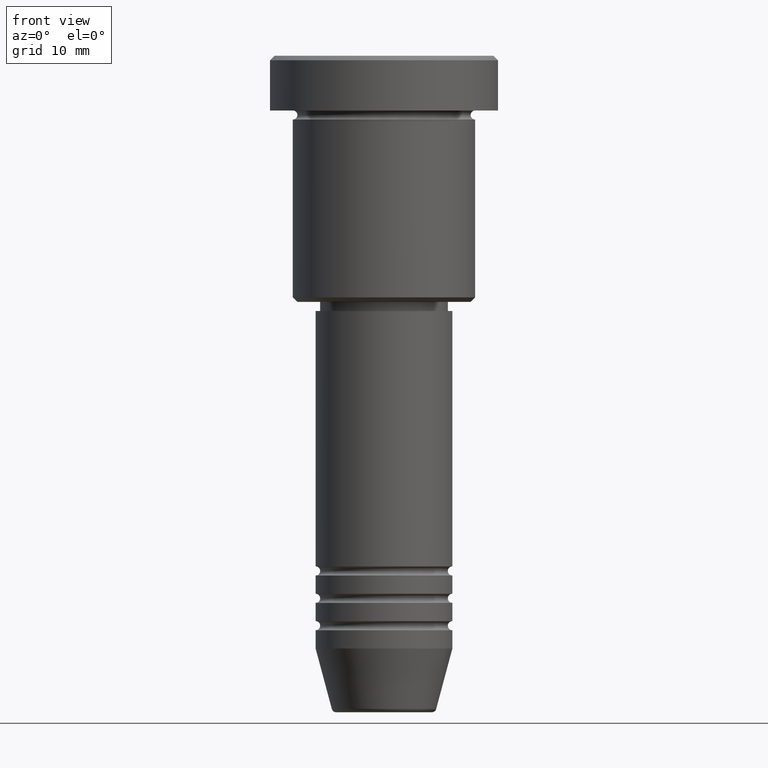
[diagram: clean part render]
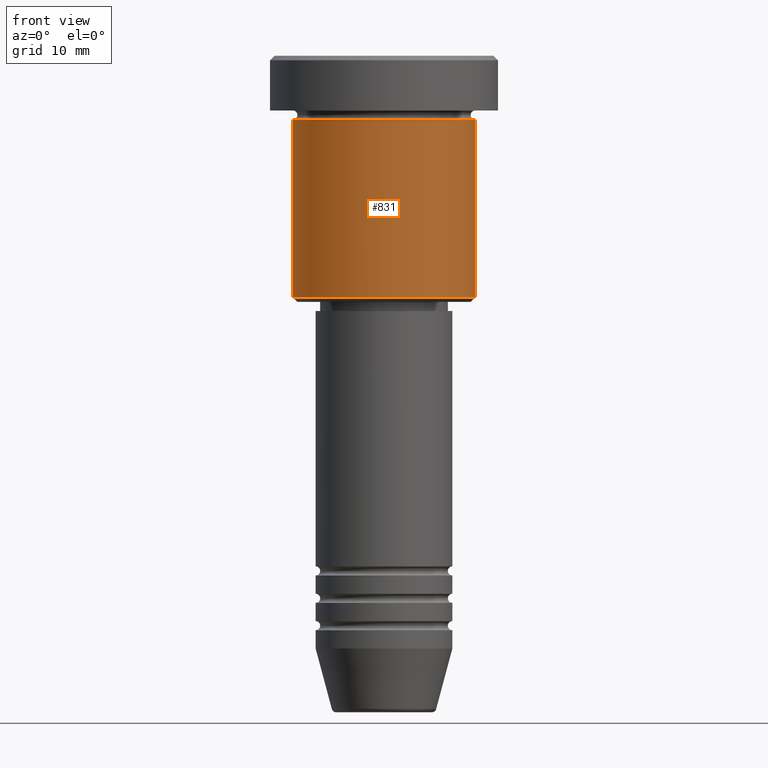
[diagram: same view with one face highlighted and labeled with its STEP entity id]
A machine part, front view. The second image highlights one B-rep face of the part: STEP entity #831.
In plain terms, the highlighted cylindrical surface (partial cylindrical patch) has radius 10 mm, axis along (-0, -0, 1).
Its self-contained STEP definition (entity closure, byte-faithful):
#19 = VERTEX_POINT ( 'NONE', #1069 ) ;
#42 = CARTESIAN_POINT ( 'NONE',  ( -10.00000000000000000, 1.224646799147353256E-15, 0.000000000000000000 ) ) ;
#53 = CARTESIAN_POINT ( 'NONE',  ( 0.000000000000000000, 0.000000000000000000, -26.50000000000000355 ) ) ;
#58 = CYLINDRICAL_SURFACE ( 'NONE', #965, 10.00000000000000000 ) ;
#96 = VECTOR ( 'NONE', #124, 1000.000000000000000 ) ;
#118 = DIRECTION ( 'NONE',  ( -0.000000000000000000, -0.000000000000000000, 1.000000000000000000 ) ) ;
#124 = DIRECTION ( 'NONE',  ( -0.000000000000000000, -0.000000000000000000, 1.000000000000000000 ) ) ;
#146 = DIRECTION ( 'NONE',  ( -0.000000000000000000, -0.000000000000000000, 1.000000000000000000 ) ) ;
#176 = ORIENTED_EDGE ( 'NONE', *, *, #640, .F. ) ;
#207 = CARTESIAN_POINT ( 'NONE',  ( 0.000000000000000000, 0.000000000000000000, -6.999999999999996447 ) ) ;
#224 = EDGE_LOOP ( 'NONE', ( #176, #378, #949, #263 ) ) ;
#227 = DIRECTION ( 'NONE',  ( 1.000000000000000000, 0.000000000000000000, 0.000000000000000000 ) ) ;
#263 = ORIENTED_EDGE ( 'NONE', *, *, #796, .F. ) ;
#276 = LINE ( 'NONE', #1011, #764 ) ;
#378 = ORIENTED_EDGE ( 'NONE', *, *, #1151, .T. ) ;
#407 = DIRECTION ( 'NONE',  ( -1.000000000000000000, 0.000000000000000000, 0.000000000000000000 ) ) ;
#417 = VERTEX_POINT ( 'NONE', #577 ) ;
#485 = LINE ( 'NONE', #42, #96 ) ;
#499 = AXIS2_PLACEMENT_3D ( 'NONE', #53, #1073, #407 ) ;
#501 = FACE_OUTER_BOUND ( 'NONE', #224, .T. ) ;
#515 = VERTEX_POINT ( 'NONE', #998 ) ;
#577 = CARTESIAN_POINT ( 'NONE',  ( 10.00000000000000000, 0.000000000000000000, -26.50000000000000355 ) ) ;
#582 = VERTEX_POINT ( 'NONE', #736 ) ;
#613 = CIRCLE ( 'NONE', #684, 10.00000000000000000 ) ;
#640 = EDGE_CURVE ( 'NONE', #515, #582, #485, .T. ) ;
#681 = CARTESIAN_POINT ( 'NONE',  ( 0.000000000000000000, 0.000000000000000000, 0.000000000000000000 ) ) ;
#684 = AXIS2_PLACEMENT_3D ( 'NONE', #207, #118, #227 ) ;
#692 = EDGE_CURVE ( 'NONE', #417, #19, #276, .T. ) ;
#736 = CARTESIAN_POINT ( 'NONE',  ( -10.00000000000000000, 1.224646799147353256E-15, -6.999999999999996447 ) ) ;
#764 = VECTOR ( 'NONE', #918, 1000.000000000000000 ) ;
#796 = EDGE_CURVE ( 'NONE', #582, #19, #613, .T. ) ;
#831 = ADVANCED_FACE ( 'NONE', ( #501 ), #58, .T. ) ;
#918 = DIRECTION ( 'NONE',  ( -0.000000000000000000, -0.000000000000000000, 1.000000000000000000 ) ) ;
#949 = ORIENTED_EDGE ( 'NONE', *, *, #692, .T. ) ;
#965 = AXIS2_PLACEMENT_3D ( 'NONE', #681, #146, #1072 ) ;
#998 = CARTESIAN_POINT ( 'NONE',  ( -10.00000000000000000, 1.224646799147353256E-15, -26.50000000000000355 ) ) ;
#1011 = CARTESIAN_POINT ( 'NONE',  ( 10.00000000000000000, 0.000000000000000000, 0.000000000000000000 ) ) ;
#1069 = CARTESIAN_POINT ( 'NONE',  ( 10.00000000000000000, 0.000000000000000000, -6.999999999999996447 ) ) ;
#1072 = DIRECTION ( 'NONE',  ( 1.000000000000000000, 0.000000000000000000, 0.000000000000000000 ) ) ;
#1073 = DIRECTION ( 'NONE',  ( -0.000000000000000000, -0.000000000000000000, 1.000000000000000000 ) ) ;
#1144 = CIRCLE ( 'NONE', #499, 10.00000000000000000 ) ;
#1151 = EDGE_CURVE ( 'NONE', #515, #417, #1144, .T. ) ;